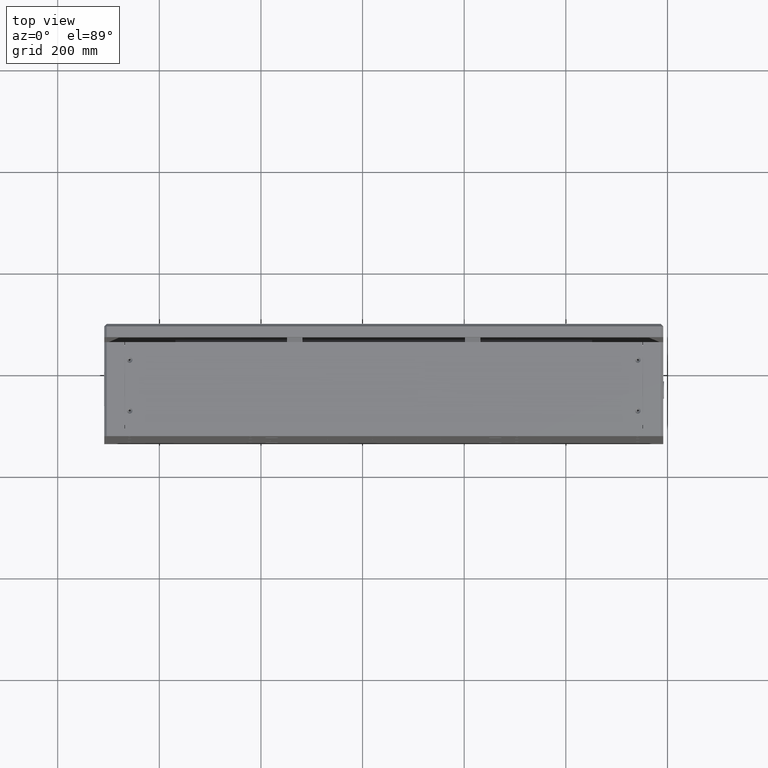
[diagram: clean part render]
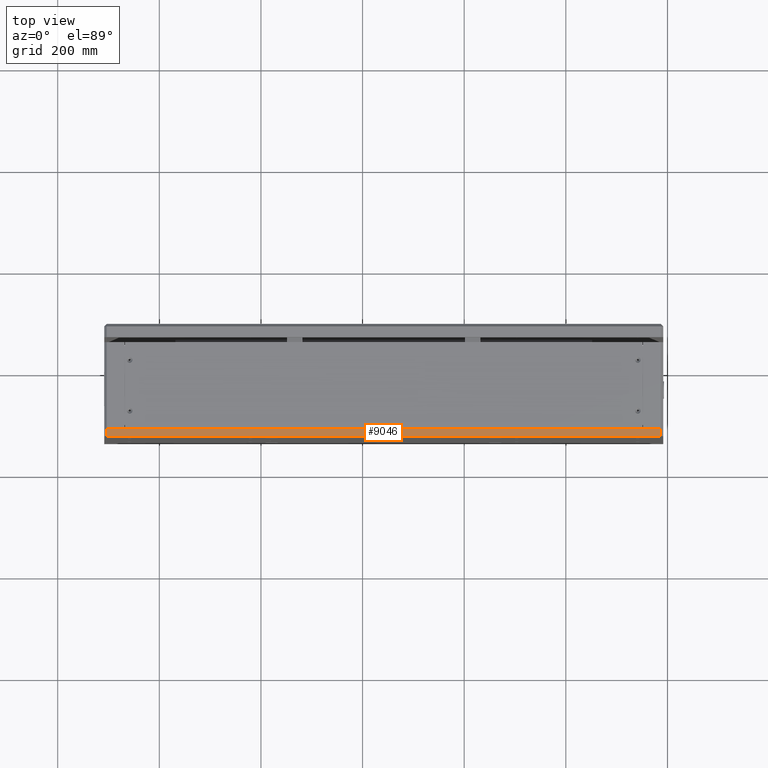
[diagram: same view with one face highlighted and labeled with its STEP entity id]
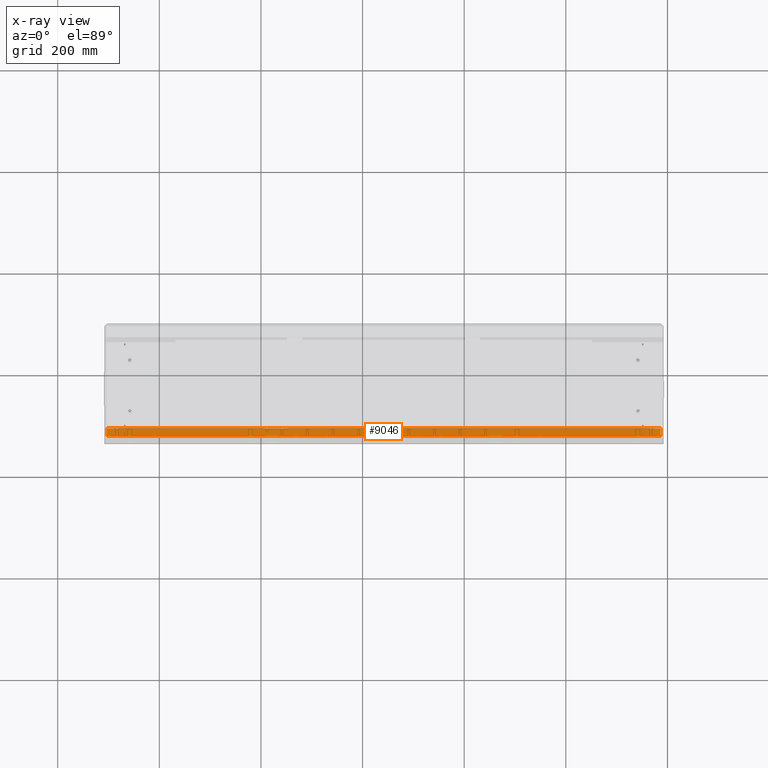
[diagram: x-ray of the same camera — body ghosted, the highlighted face saturated]
A machine part, top view. The second image highlights one B-rep face of the part: STEP entity #9046.
The next image is the same camera in x-ray: the body ghosted, the highlighted face saturated — about 0% of this face is hidden behind the body in this view.
In plain terms, the highlighted planar face has unit normal (0, 0, -1).
Its self-contained STEP definition (entity closure, byte-faithful):
#621 = DIRECTION ( 'NONE',  ( 0.000000000000000000, 1.000000000000000000, 0.000000000000000000 ) ) ;
#1471 = CARTESIAN_POINT ( 'NONE',  ( -708.3695244093421479, 79.96507464035516932, 1299.494235292438589 ) ) ;
#1521 = VECTOR ( 'NONE', #28455, 1000.000000000000000 ) ;
#3744 = CARTESIAN_POINT ( 'NONE',  ( -708.3695244093421479, 64.96507464035516932, 1299.494235292438589 ) ) ;
#4232 = DIRECTION ( 'NONE',  ( -1.000000000000000000, -0.000000000000000000, -0.000000000000000000 ) ) ;
#4901 = VECTOR ( 'NONE', #4232, 1000.000000000000000 ) ;
#4915 = PLANE ( 'NONE',  #38012 ) ;
#5383 = ORIENTED_EDGE ( 'NONE', *, *, #33214, .T. ) ;
#8277 = EDGE_LOOP ( 'NONE', ( #40477, #5383, #26928, #36914 ) ) ;
#9046 = ADVANCED_FACE ( 'NONE', ( #40007 ), #4915, .F. ) ;
#10305 = DIRECTION ( 'NONE',  ( 0.000000000000000000, 0.000000000000000000, -1.000000000000000000 ) ) ;
#12861 = CARTESIAN_POINT ( 'NONE',  ( 386.6304755906581931, 79.96507464035516932, 1299.494235292438589 ) ) ;
#14412 = VERTEX_POINT ( 'NONE', #16681 ) ;
#15210 = CARTESIAN_POINT ( 'NONE',  ( -703.3695244093424890, 64.96507464035516932, 1299.494235292438589 ) ) ;
#16015 = LINE ( 'NONE', #3744, #4901 ) ;
#16681 = CARTESIAN_POINT ( 'NONE',  ( -703.3695244093424890, 79.96507464035516932, 1299.494235292438589 ) ) ;
#17602 = LINE ( 'NONE', #1471, #20266 ) ;
#19398 = EDGE_CURVE ( 'NONE', #35739, #14412, #47469, .T. ) ;
#20266 = VECTOR ( 'NONE', #20402, 1000.000000000000000 ) ;
#20343 = CARTESIAN_POINT ( 'NONE',  ( 386.6304755906581931, 79.96507464035516932, 1299.494235292438589 ) ) ;
#20402 = DIRECTION ( 'NONE',  ( -1.000000000000000000, -0.000000000000000000, -0.000000000000000000 ) ) ;
#20546 = CARTESIAN_POINT ( 'NONE',  ( -708.3695244093421479, 79.96507464035516932, 1299.494235292438589 ) ) ;
#22402 = EDGE_CURVE ( 'NONE', #48480, #35739, #16015, .T. ) ;
#26928 = ORIENTED_EDGE ( 'NONE', *, *, #19398, .F. ) ;
#26954 = EDGE_CURVE ( 'NONE', #27611, #48480, #48438, .T. ) ;
#27611 = VERTEX_POINT ( 'NONE', #20343 ) ;
#27730 = CARTESIAN_POINT ( 'NONE',  ( 386.6304755906581931, 64.96507464035516932, 1299.494235292438589 ) ) ;
#28455 = DIRECTION ( 'NONE',  ( -0.000000000000000000, -1.000000000000000000, -0.000000000000000000 ) ) ;
#31252 = VECTOR ( 'NONE', #621, 1000.000000000000000 ) ;
#31841 = CARTESIAN_POINT ( 'NONE',  ( -703.3695244093424890, 79.96507464035516932, 1299.494235292438589 ) ) ;
#33214 = EDGE_CURVE ( 'NONE', #27611, #14412, #17602, .T. ) ;
#35739 = VERTEX_POINT ( 'NONE', #15210 ) ;
#36914 = ORIENTED_EDGE ( 'NONE', *, *, #22402, .F. ) ;
#38012 = AXIS2_PLACEMENT_3D ( 'NONE', #20546, #10305, #45130 ) ;
#40007 = FACE_OUTER_BOUND ( 'NONE', #8277, .T. ) ;
#40477 = ORIENTED_EDGE ( 'NONE', *, *, #26954, .F. ) ;
#45130 = DIRECTION ( 'NONE',  ( -1.000000000000000000, 0.000000000000000000, -0.000000000000000000 ) ) ;
#47469 = LINE ( 'NONE', #31841, #31252 ) ;
#48438 = LINE ( 'NONE', #12861, #1521 ) ;
#48480 = VERTEX_POINT ( 'NONE', #27730 ) ;